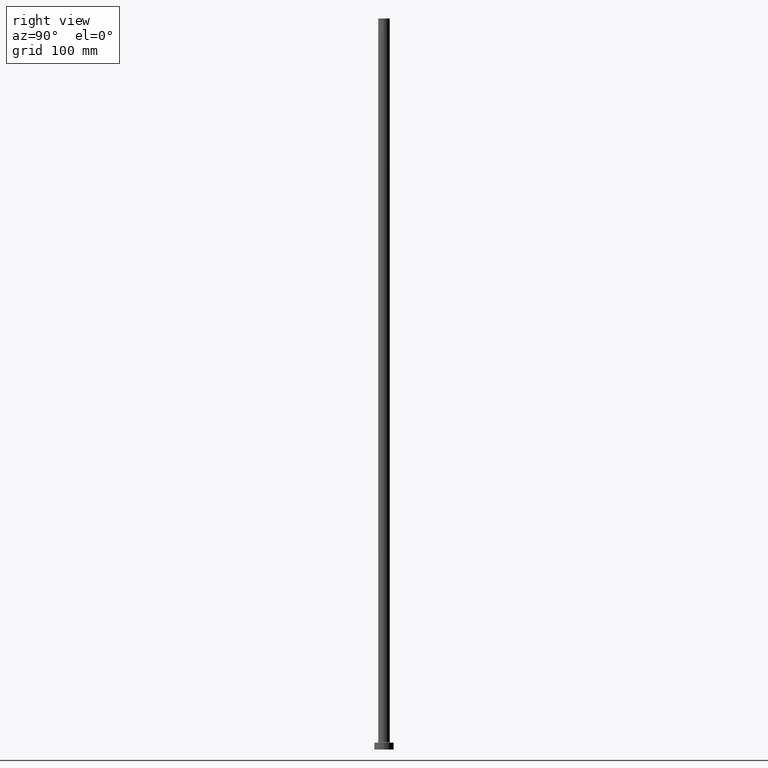
[diagram: clean part render]
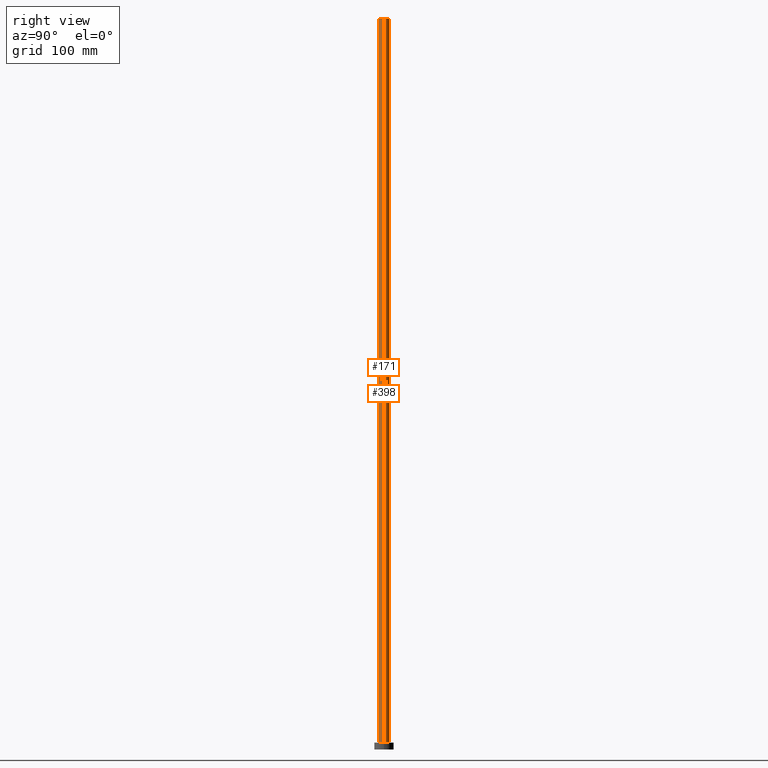
[diagram: same view with one multi-face feature highlighted, each face labeled with its STEP entity id]
A machine part, right view. The highlighted faces form ONE feature: a constant-radius fillet chain: 2 tangent blend faces with common blend radius 6 mm. The faces share edges in the B-rep.
Their STEP definitions:
[1] entity #398 (Cylinder):
#2 = EDGE_LOOP ( 'NONE', ( #151, #365, #74, #221 ) ) ;
#9 = EDGE_CURVE ( 'NONE', #225, #143, #190, .T. ) ;
#12 = CARTESIAN_POINT ( 'NONE',  ( -6.000000000000000888, 0.000000000000000000, 750.0000000000000000 ) ) ;
#30 = DIRECTION ( 'NONE',  ( 1.000000000000000000, 0.000000000000000000, 0.000000000000000000 ) ) ;
#38 = CARTESIAN_POINT ( 'NONE',  ( 6.000000000000000888, 7.347880794884119736E-16, 750.0000000000000000 ) ) ;
#50 = EDGE_CURVE ( 'NONE', #360, #143, #210, .T. ) ;
#53 = DIRECTION ( 'NONE',  ( 0.000000000000000000, 0.000000000000000000, 1.000000000000000000 ) ) ;
#66 = DIRECTION ( 'NONE',  ( -1.000000000000000000, 0.000000000000000000, 0.000000000000000000 ) ) ;
#74 = ORIENTED_EDGE ( 'NONE', *, *, #50, .T. ) ;
#103 = CARTESIAN_POINT ( 'NONE',  ( 0.000000000000000000, 0.000000000000000000, 750.0000000000000000 ) ) ;
#106 = EDGE_CURVE ( 'NONE', #327, #360, #277, .T. ) ;
#109 = VECTOR ( 'NONE', #443, 1000.000000000000000 ) ;
#143 = VERTEX_POINT ( 'NONE', #410 ) ;
#146 = FACE_OUTER_BOUND ( 'NONE', #2, .T. ) ;
#151 = ORIENTED_EDGE ( 'NONE', *, *, #341, .F. ) ;
#170 = CARTESIAN_POINT ( 'NONE',  ( 6.000000000000000888, 7.347880794884119736E-16, 750.0000000000000000 ) ) ;
#190 = LINE ( 'NONE', #12, #109 ) ;
#203 = CARTESIAN_POINT ( 'NONE',  ( -6.000000000000000888, 0.000000000000000000, 750.0000000000000000 ) ) ;
#206 = CIRCLE ( 'NONE', #447, 6.000000000000000888 ) ;
#210 = CIRCLE ( 'NONE', #283, 6.000000000000000888 ) ;
#221 = ORIENTED_EDGE ( 'NONE', *, *, #9, .F. ) ;
#225 = VERTEX_POINT ( 'NONE', #203 ) ;
#253 = DIRECTION ( 'NONE',  ( -0.000000000000000000, -0.000000000000000000, -1.000000000000000000 ) ) ;
#277 = LINE ( 'NONE', #170, #336 ) ;
#283 = AXIS2_PLACEMENT_3D ( 'NONE', #434, #53, #337 ) ;
#327 = VERTEX_POINT ( 'NONE', #38 ) ;
#336 = VECTOR ( 'NONE', #373, 1000.000000000000000 ) ;
#337 = DIRECTION ( 'NONE',  ( 1.000000000000000000, 0.000000000000000000, 0.000000000000000000 ) ) ;
#341 = EDGE_CURVE ( 'NONE', #327, #225, #206, .T. ) ;
#351 = CARTESIAN_POINT ( 'NONE',  ( 0.000000000000000000, 0.000000000000000000, 750.0000000000000000 ) ) ;
#354 = CARTESIAN_POINT ( 'NONE',  ( 6.000000000000000888, 7.347880794884119736E-16, 7.700000000000040146 ) ) ;
#356 = DIRECTION ( 'NONE',  ( 0.000000000000000000, 0.000000000000000000, 1.000000000000000000 ) ) ;
#360 = VERTEX_POINT ( 'NONE', #354 ) ;
#365 = ORIENTED_EDGE ( 'NONE', *, *, #106, .T. ) ;
#373 = DIRECTION ( 'NONE',  ( -0.000000000000000000, -0.000000000000000000, -1.000000000000000000 ) ) ;
#381 = AXIS2_PLACEMENT_3D ( 'NONE', #103, #253, #66 ) ;
#398 = ADVANCED_FACE ( 'NONE', ( #146 ), #420, .T. ) ;
#410 = CARTESIAN_POINT ( 'NONE',  ( -6.000000000000000888, 0.000000000000000000, 7.700000000000040146 ) ) ;
#420 = CYLINDRICAL_SURFACE ( 'NONE', #381, 6.000000000000000888 ) ;
#434 = CARTESIAN_POINT ( 'NONE',  ( 0.000000000000000000, 0.000000000000000000, 7.700000000000040146 ) ) ;
#443 = DIRECTION ( 'NONE',  ( -0.000000000000000000, -0.000000000000000000, -1.000000000000000000 ) ) ;
#447 = AXIS2_PLACEMENT_3D ( 'NONE', #351, #356, #30 ) ;
[2] entity #171 (Cylinder):
#9 = EDGE_CURVE ( 'NONE', #225, #143, #190, .T. ) ;
#12 = CARTESIAN_POINT ( 'NONE',  ( -6.000000000000000888, 0.000000000000000000, 750.0000000000000000 ) ) ;
#38 = CARTESIAN_POINT ( 'NONE',  ( 6.000000000000000888, 7.347880794884119736E-16, 750.0000000000000000 ) ) ;
#46 = AXIS2_PLACEMENT_3D ( 'NONE', #61, #59, #166 ) ;
#59 = DIRECTION ( 'NONE',  ( 0.000000000000000000, 0.000000000000000000, 1.000000000000000000 ) ) ;
#61 = CARTESIAN_POINT ( 'NONE',  ( 0.000000000000000000, 0.000000000000000000, 750.0000000000000000 ) ) ;
#64 = CYLINDRICAL_SURFACE ( 'NONE', #406, 6.000000000000000888 ) ;
#83 = ORIENTED_EDGE ( 'NONE', *, *, #9, .T. ) ;
#89 = FACE_OUTER_BOUND ( 'NONE', #418, .T. ) ;
#93 = CIRCLE ( 'NONE', #46, 6.000000000000000888 ) ;
#97 = DIRECTION ( 'NONE',  ( -0.000000000000000000, -0.000000000000000000, -1.000000000000000000 ) ) ;
#106 = EDGE_CURVE ( 'NONE', #327, #360, #277, .T. ) ;
#109 = VECTOR ( 'NONE', #443, 1000.000000000000000 ) ;
#129 = CARTESIAN_POINT ( 'NONE',  ( 0.000000000000000000, 0.000000000000000000, 750.0000000000000000 ) ) ;
#143 = VERTEX_POINT ( 'NONE', #410 ) ;
#148 = CARTESIAN_POINT ( 'NONE',  ( 0.000000000000000000, 0.000000000000000000, 7.700000000000040146 ) ) ;
#166 = DIRECTION ( 'NONE',  ( 1.000000000000000000, 0.000000000000000000, 0.000000000000000000 ) ) ;
#170 = CARTESIAN_POINT ( 'NONE',  ( 6.000000000000000888, 7.347880794884119736E-16, 750.0000000000000000 ) ) ;
#171 = ADVANCED_FACE ( 'NONE', ( #89 ), #64, .T. ) ;
#190 = LINE ( 'NONE', #12, #109 ) ;
#192 = EDGE_CURVE ( 'NONE', #225, #327, #93, .T. ) ;
#203 = CARTESIAN_POINT ( 'NONE',  ( -6.000000000000000888, 0.000000000000000000, 750.0000000000000000 ) ) ;
#218 = DIRECTION ( 'NONE',  ( 1.000000000000000000, 0.000000000000000000, 0.000000000000000000 ) ) ;
#225 = VERTEX_POINT ( 'NONE', #203 ) ;
#277 = LINE ( 'NONE', #170, #336 ) ;
#291 = ORIENTED_EDGE ( 'NONE', *, *, #192, .F. ) ;
#315 = AXIS2_PLACEMENT_3D ( 'NONE', #148, #316, #218 ) ;
#316 = DIRECTION ( 'NONE',  ( 0.000000000000000000, 0.000000000000000000, 1.000000000000000000 ) ) ;
#327 = VERTEX_POINT ( 'NONE', #38 ) ;
#336 = VECTOR ( 'NONE', #373, 1000.000000000000000 ) ;
#342 = EDGE_CURVE ( 'NONE', #143, #360, #363, .T. ) ;
#354 = CARTESIAN_POINT ( 'NONE',  ( 6.000000000000000888, 7.347880794884119736E-16, 7.700000000000040146 ) ) ;
#360 = VERTEX_POINT ( 'NONE', #354 ) ;
#363 = CIRCLE ( 'NONE', #315, 6.000000000000000888 ) ;
#373 = DIRECTION ( 'NONE',  ( -0.000000000000000000, -0.000000000000000000, -1.000000000000000000 ) ) ;
#378 = DIRECTION ( 'NONE',  ( -1.000000000000000000, 0.000000000000000000, 0.000000000000000000 ) ) ;
#400 = ORIENTED_EDGE ( 'NONE', *, *, #106, .F. ) ;
#406 = AXIS2_PLACEMENT_3D ( 'NONE', #129, #97, #378 ) ;
#410 = CARTESIAN_POINT ( 'NONE',  ( -6.000000000000000888, 0.000000000000000000, 7.700000000000040146 ) ) ;
#418 = EDGE_LOOP ( 'NONE', ( #400, #291, #83, #421 ) ) ;
#421 = ORIENTED_EDGE ( 'NONE', *, *, #342, .T. ) ;
#443 = DIRECTION ( 'NONE',  ( -0.000000000000000000, -0.000000000000000000, -1.000000000000000000 ) ) ;